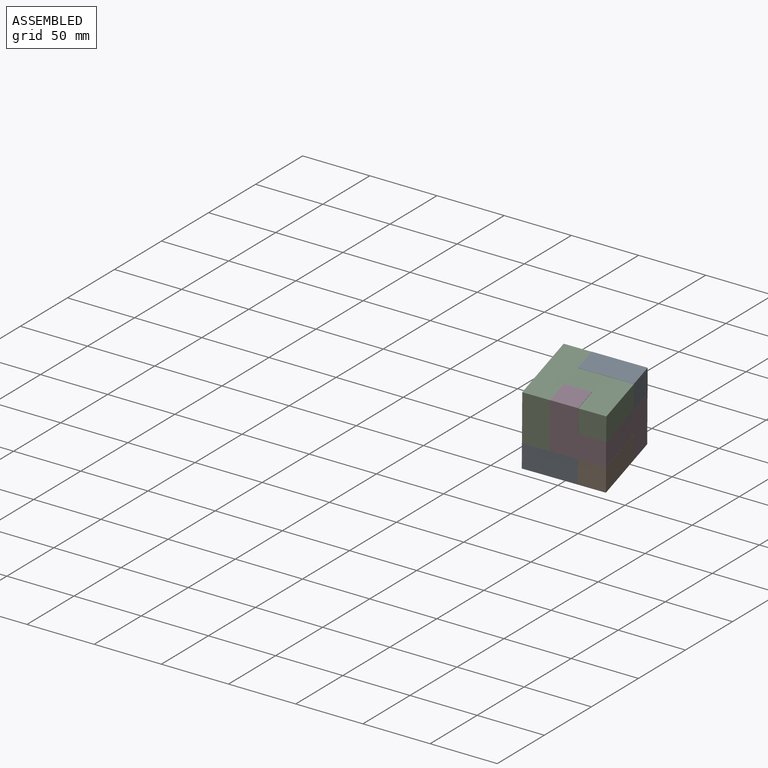
[diagram: assembled view]
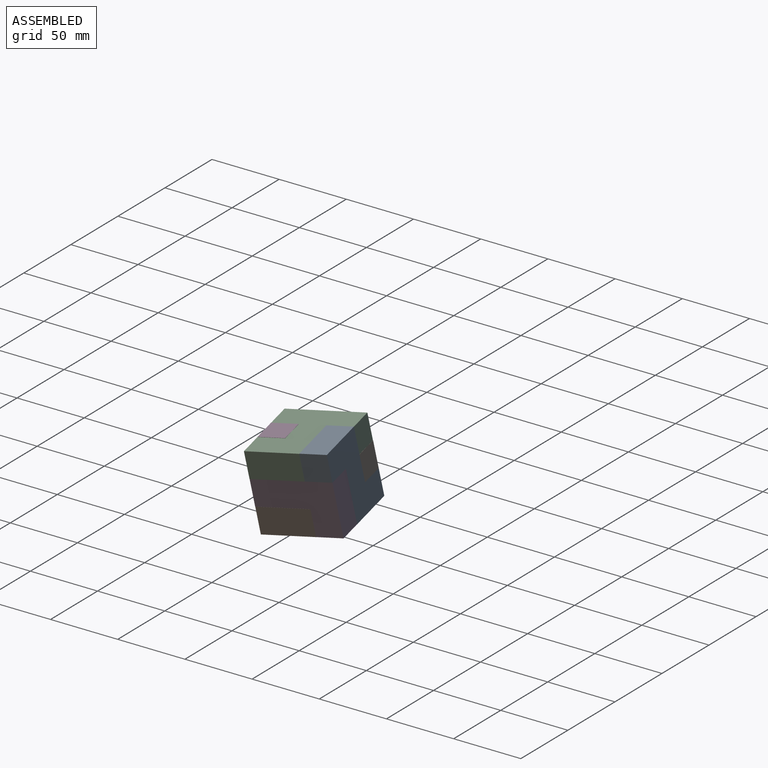
[diagram: assembled view, second angle]
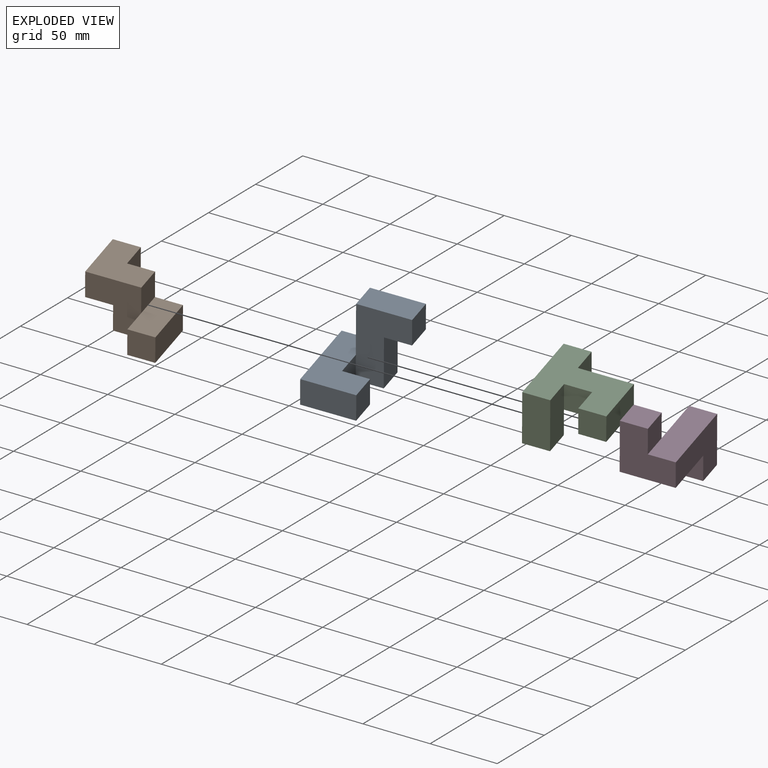
[diagram: exploded view]
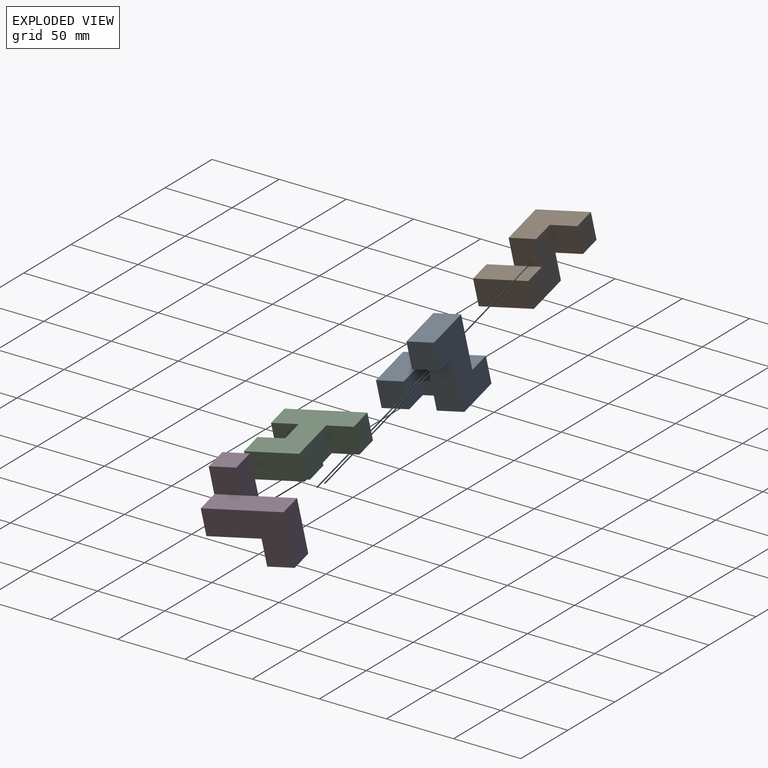
[diagram: exploded view, second angle]
ASSEMBLY  parts=4 mates=3
PART A: 14 faces, bbox 57.2x57.2x57.2 mm
  f0: plane 38.1x19.05mm, normal (-1,0,0), area 725.8mm2, adj f1,f2,f4,f6
  f1: plane 57.15x38.1mm, normal (0,1,0), area 1451.6mm2, adj f0,f3,f4,f5,f6,f7,f10
  f2: plane 57.15x57.15mm, normal (0,-1,0), area 1814.5mm2, adj f0,f3,f4,f5,f6,f7,f8,f9
  f3: plane 38.1x19.05mm, normal (1,0,0), area 725.8mm2, adj f1,f2,f5,f8
  f4: plane 57.15x38.1mm, normal (0,0,-1), area 1814.5mm2, adj f0,f1,f2,f9,f10,f11,f12,f13
  f5: plane 38.1x19.05mm, normal (0,0,1), area 725.8mm2, adj f1,f2,f3,f7
  f6: plane 19.05x19.05mm, normal (0,0,-1), area 362.9mm2, adj f0,f1,f2,f7
  f7: plane 19.05x19.05mm, normal (-1,0,0), area 362.9mm2, adj f1,f2,f5,f6
  f8: plane 57.15x38.1mm, normal (0,0,1), area 1451.6mm2, adj f2,f3,f9,f10,f11,f12,f13
  f9: plane 57.15x19.05mm, normal (1,0,0), area 1088.7mm2, adj f2,f4,f8,f11
  f10: plane 19.05x19.05mm, normal (-1,0,0), area 362.9mm2, adj f1,f4,f8,f12
  f11: plane 38.1x19.05mm, normal (0,1,0), area 725.8mm2, adj f4,f8,f9,f13
  f12: plane 19.05x19.05mm, normal (0,-1,0), area 362.9mm2, adj f4,f8,f10,f13
  f13: plane 19.05x19.05mm, normal (-1,0,0), area 362.9mm2, adj f4,f8,f11,f12
PART B: 14 faces, bbox 57.2x57.2x38.1 mm
  f0: plane 38.1x38.1mm, normal (1,0,0), area 1088.7mm2, adj f3,f4,f5,f7,f8,f9,f12
  f1: plane 19.05x19.05mm, normal (0,1,0), area 362.9mm2, adj f2,f4,f5,f6
  f2: plane 19.05x19.05mm, normal (-1,0,0), area 362.9mm2, adj f1,f3,f4,f5
  f3: plane 38.1x19.05mm, normal (0,-1,0), area 725.8mm2, adj f0,f2,f4,f5
  f4: plane 38.1x19.05mm, normal (0,0,1), area 725.8mm2, adj f0,f1,f2,f3,f8
  f5: plane 38.1x38.1mm, normal (0,0,-1), area 1088.7mm2, adj f0,f1,f2,f3,f6,f7
  f6: plane 38.1x38.1mm, normal (-1,0,0), area 1088.7mm2, adj f1,f5,f7,f8,f9,f10,f11
  f7: plane 19.05x19.05mm, normal (0,1,0), area 362.9mm2, adj f0,f5,f6,f10
  f8: plane 19.05x19.05mm, normal (0,-1,0), area 362.9mm2, adj f0,f4,f6,f9
  f9: plane 38.1x38.1mm, normal (0,0,1), area 1088.7mm2, adj f0,f6,f8,f11,f12,f13
  f10: plane 38.1x19.05mm, normal (0,0,-1), area 725.8mm2, adj f6,f7,f11,f12,f13
  f11: plane 38.1x19.05mm, normal (0,1,0), area 725.8mm2, adj f6,f9,f10,f13
  f12: plane 19.05x19.05mm, normal (0,-1,0), area 362.9mm2, adj f0,f9,f10,f13
  f13: plane 19.05x19.05mm, normal (1,0,0), area 362.9mm2, adj f9,f10,f11,f12
PART C: 14 faces, bbox 38.1x57.2x57.2 mm
  f0: plane 19.05x19.05mm, normal (0,-1,0), area 362.9mm2, adj f1,f3,f8,f12
  f1: plane 38.1x19.05mm, normal (0,0,1), area 725.8mm2, adj f0,f2,f3,f4,f7
  f2: plane 19.05x19.05mm, normal (0,1,0), area 362.9mm2, adj f1,f6,f7,f8
  f3: plane 57.15x57.15mm, normal (-1,0,0), area 2177.4mm2, adj f0,f1,f4,f5,f6,f9,f10,f11
  f4: plane 38.1x19.05mm, normal (0,-1,0), area 725.8mm2, adj f1,f3,f6,f7
  f5: plane 19.05x19.05mm, normal (0,0,1), area 362.9mm2, adj f3,f8,f9,f10
  f6: plane 57.15x38.1mm, normal (0,0,-1), area 1451.6mm2, adj f2,f3,f4,f7,f8,f9
  f7: plane 19.05x19.05mm, normal (1,0,0), area 362.9mm2, adj f1,f2,f4,f6
  f8: plane 57.15x57.15mm, normal (1,0,0), area 1814.5mm2, adj f0,f2,f5,f6,f9,f10,f11,f12
  f9: plane 19.05x19.05mm, normal (0,1,0), area 362.9mm2, adj f3,f5,f6,f8
  f10: plane 38.1x19.05mm, normal (0,1,0), area 725.8mm2, adj f3,f5,f8,f11
  f11: plane 38.1x19.05mm, normal (0,0,1), area 725.8mm2, adj f3,f8,f10,f13
  f12: plane 19.05x19.05mm, normal (0,0,-1), area 362.9mm2, adj f0,f3,f8,f13
  f13: plane 19.05x19.05mm, normal (0,-1,0), area 362.9mm2, adj f3,f8,f11,f12
PART D: 12 faces, bbox 38.1x57.2x57.2 mm
  f0: plane 38.1x19.05mm, normal (0,0,1), area 725.8mm2, adj f1,f2,f3,f5,f8
  f1: plane 38.1x19.05mm, normal (-1,0,0), area 725.8mm2, adj f0,f2,f4,f5
  f2: plane 19.05x19.05mm, normal (0,-1,0), area 362.9mm2, adj f0,f1,f3,f4
  f3: plane 19.05x19.05mm, normal (1,0,0), area 362.9mm2, adj f0,f2,f4,f6
  f4: plane 38.1x38.1mm, normal (0,0,-1), area 1088.7mm2, adj f1,f2,f3,f5,f6,f7
  f5: plane 38.1x38.1mm, normal (0,1,0), area 1088.7mm2, adj f0,f1,f4,f7,f8,f10
  f6: plane 57.15x19.05mm, normal (0,-1,0), area 1088.7mm2, adj f3,f4,f7,f8,f9
  f7: plane 57.15x38.1mm, normal (1,0,0), area 1451.6mm2, adj f4,f5,f6,f9,f10,f11
  f8: plane 38.1x38.1mm, normal (-1,0,0), area 1088.7mm2, adj f0,f5,f6,f9,f10,f11
  f9: plane 38.1x19.05mm, normal (0,0,1), area 725.8mm2, adj f6,f7,f8,f11
  f10: plane 19.05x19.05mm, normal (0,0,-1), area 362.9mm2, adj f5,f7,f8,f11
  f11: plane 19.05x19.05mm, normal (0,1,0), area 362.9mm2, adj f7,f8,f9,f10
PLACE A rot(axis=(-0.05,0.08,-1),171.2deg) t=(4.73,36.3,165.79)mm
PLACE B rot(axis=(0.12,-0.03,0.99),99.2deg) t=(28.99,2.13,158.14)mm fixed
PLACE C rot(axis=(0,0.99,0.15),96.1deg) t=(-12.72,-12.39,208.86)mm
PLACE D rot(axis=(-0.99,-0.03,0.13),81.7deg) t=(16.18,-17.29,205.37)mm
MATE parallel A.f11 <-> D.f4  axis (0.14,-0.98,-0.16) through (3.28,-13.11,168.37)mm
MATE parallel B.f11 <-> A.f9  axis (-0.98,-0.16,0.08) through (-18.95,18.31,194.76)mm
MATE parallel C.f6 <-> A.f9  axis (-0.98,-0.16,0.08) through (-15.29,2.25,206.45)mm
